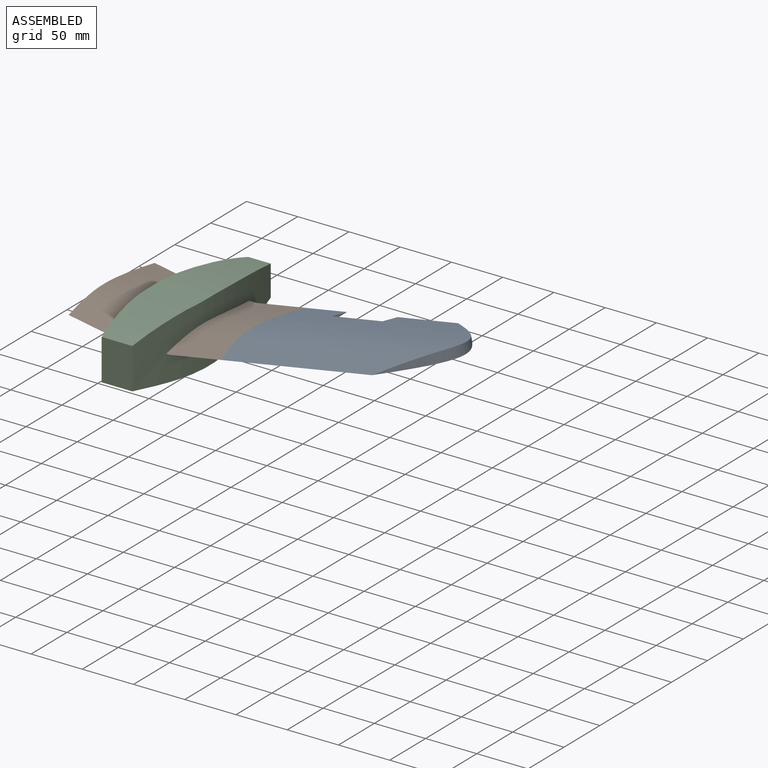
[diagram: assembled view]
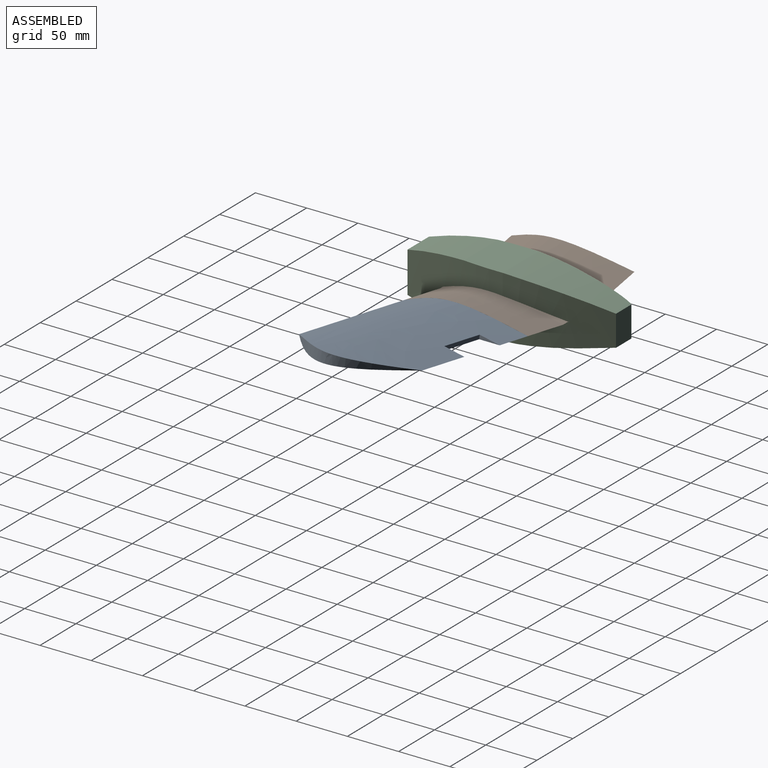
[diagram: assembled view, second angle]
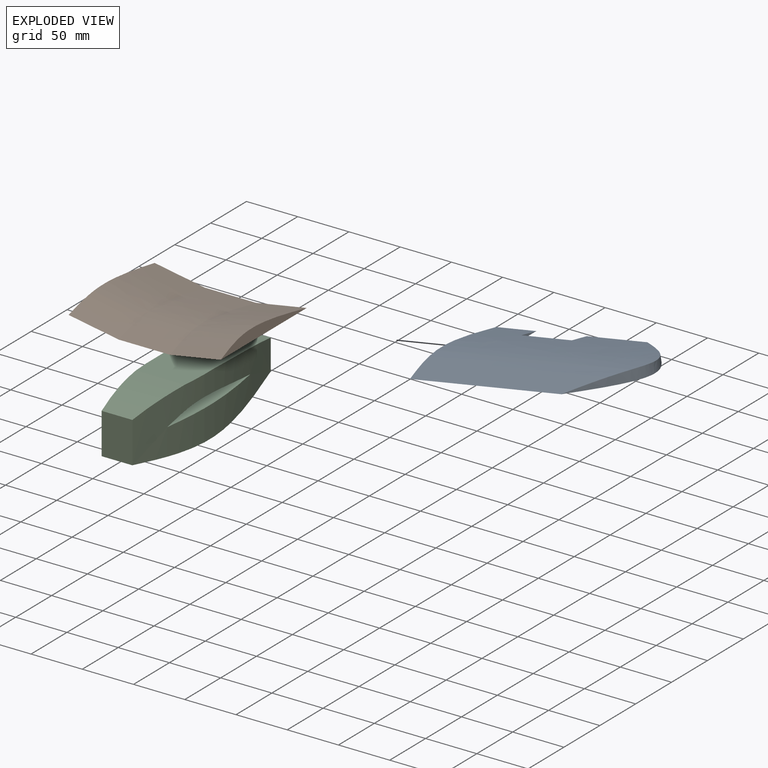
[diagram: exploded view]
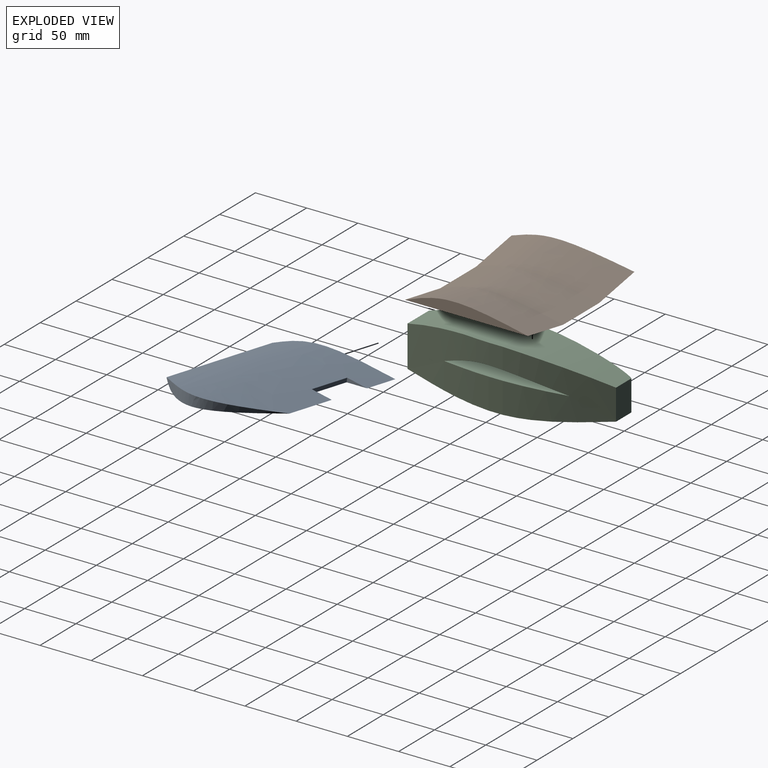
[diagram: exploded view, second angle]
ASSEMBLY  parts=3 mates=2
PART A: 8 faces, bbox 120x11.1x202.6 mm
  f0: extruded ~200x80mm, area 13950.4mm2, adj f1,f2,f3,f4,f5,f6,f7
  f1: extruded ~192.59x40mm, area 7158.5mm2, adj f0,f2,f3,f7
  f2: plane 202.6x120mm, normal (0,-1,0), area 20750mm2, adj f0,f1,f3,f4,f5,f6,f7
  f3: plane 120x11.15mm, normal (0,0,1), area 767mm2, adj f0,f1,f2
  f4: plane 20.01x3.85mm, normal (0,0,1), area 38.7mm2, adj f0,f2,f5
  f5: plane 50x3.84mm, normal (-1,0,0), area 191.8mm2, adj f0,f2,f4,f6
  f6: plane 20.01x3.85mm, normal (0,0,-1), area 38.7mm2, adj f0,f2,f5
  f7: extruded ~120x50mm, area 958.5mm2, adj f0,f1,f2
PART B: 11 faces, bbox 120x148.5x19.7 mm
  f0: extruded ~80x50mm, area 3948.9mm2, adj f1,f2,f3,f7
  f1: extruded ~50x40mm, area 2026.5mm2, adj f0,f2,f4,f8
  f2: plane 120x50mm, normal (0,0,-1), area 6000mm2, adj f0,f1,f5,f9
  f3: extruded ~80x51.01mm, area 3994.9mm2, adj f0,f4,f5,f6
  f4: extruded ~50.98x40mm, area 2048.4mm2, adj f1,f3,f5,f6
  f5: plane 120x49.24mm, normal (0,0.17,-0.98), area 6000mm2, adj f2,f3,f4,f6
  f6: plane 120x10.99mm, normal (0,0.98,0.17), area 767mm2, adj f3,f4,f5
  f7: extruded ~80x51.01mm, area 3994.9mm2, adj f0,f8,f9,f10
  f8: extruded ~50.98x40mm, area 2048.4mm2, adj f1,f7,f9,f10
  f9: plane 120x49.24mm, normal (0,-0.17,-0.98), area 6000mm2, adj f2,f7,f8,f10
  f10: plane 120x10.99mm, normal (0,-0.98,0.17), area 767mm2, adj f7,f8,f9
PART C: 19 faces, bbox 50.6x200x60 mm
  f0: plane 30.01x22.74mm, normal (-1,0,0), area 680.8mm2, adj f1,f4,f7,f14,f18
  f1: plane 50x13.77mm, normal (0,0,-1), area 688.5mm2, adj f0,f11,f17,f18
  f2: plane 40x30mm, normal (0,-1,0), area 1200mm2, adj f4,f5,f16,f18
  f3: plane 30x21.4mm, normal (0,1,0), area 641.8mm2, adj f6,f7,f15,f17
  f4: extruded ~77.26x59.66mm, area 3877.2mm2, adj f0,f2,f8,f9,f13,f14,f16,f18
  f5: extruded ~86.23x60mm, area 4320mm2, adj f2,f8,f10,f11,f12,f13,f14,f16
  f6: extruded ~100x60mm, area 4545.2mm2, adj f3,f10,f11,f12,f14,f15,f17
  f7: extruded ~100x60mm, area 4541.2mm2, adj f0,f3,f9,f12,f14,f15,f17
  f8: plane 50.07x39.1mm, normal (0,0,1), area 1931.2mm2, adj f4,f5,f9,f10,f15,f16
  f9: plane 22.83x20.47mm, normal (-1,0,0), area 454.2mm2, adj f4,f7,f8,f12,f13
  f10: plane 20.42x13.85mm, normal (1,0,0), area 275.3mm2, adj f5,f6,f8,f12
  f11: plane 30x13.77mm, normal (1,0,0), area 413.1mm2, adj f1,f5,f6,f14
  f12: extruded ~80x50mm, area 3753.2mm2, adj f5,f6,f7,f9,f10,f13,f14
  f13: extruded ~49.79x40mm, area 1948.3mm2, adj f4,f5,f9,f12,f14
  f14: plane 120.5x50.58mm, normal (0,0,1), area 5600.8mm2, adj f0,f4,f5,f6,f7,f11,f12,f13
  f15: extruded ~100x50mm, area 3989mm2, adj f3,f6,f7,f8
  f16: extruded ~60.94x47.6mm, area 2457.6mm2, adj f2,f4,f5,f8
  f17: extruded ~100x50mm, area 3990.1mm2, adj f1,f3,f6,f7
  f18: extruded ~86.23x50mm, area 3691.7mm2, adj f0,f1,f2,f4,f5
PLACE A rot(axis=(0.61,-0.61,-0.51),125.9deg) t=(291.53,-0.26,25.54)mm
PLACE B rot(axis=(0,0,1),90deg) t=(16.16,28.49,-11.48)mm
PLACE C t=(5.01,110.53,-41.78)mm
MATE parallel A.f3 <-> B.f10  axis (-0.98,0,-0.17) through (89.72,4.46,18.31)mm
MATE parallel B.f2 <-> C.f14  axis (0,0,-1) through (16.16,9.37,5.72)mm
